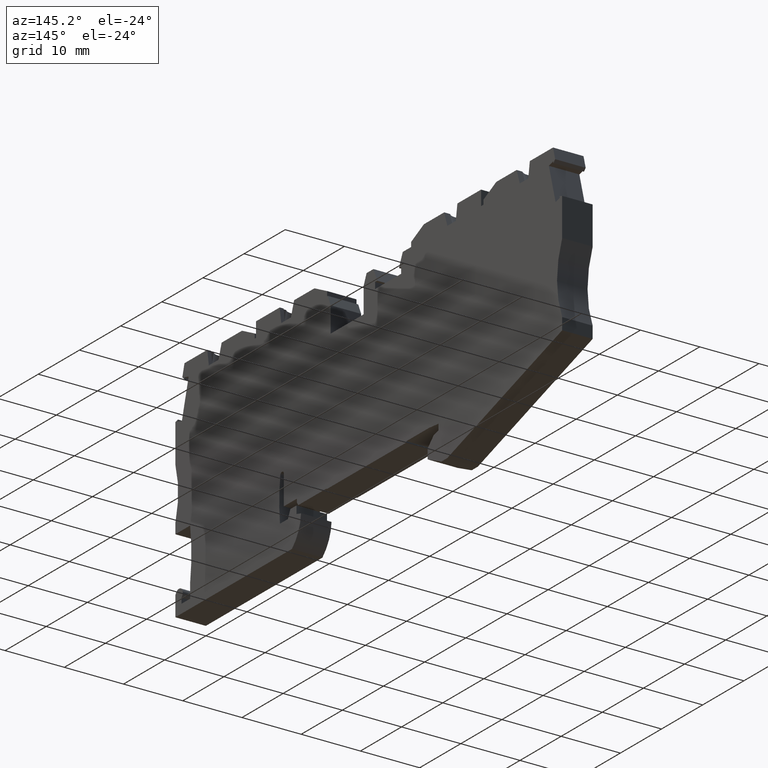
[diagram: clean part render]
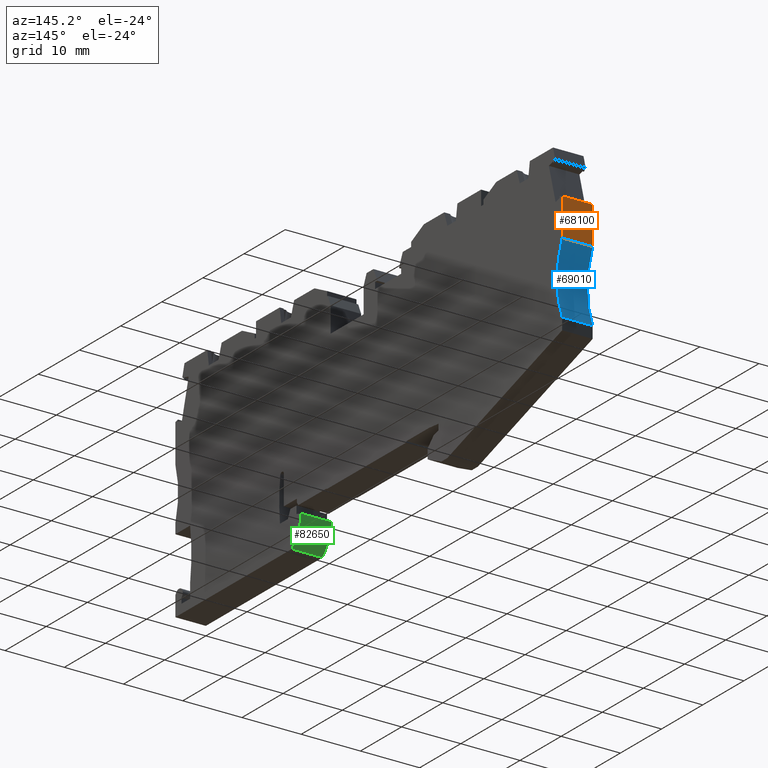
[diagram: same view with three faces highlighted in distinct colors, each labeled with its STEP entity id]
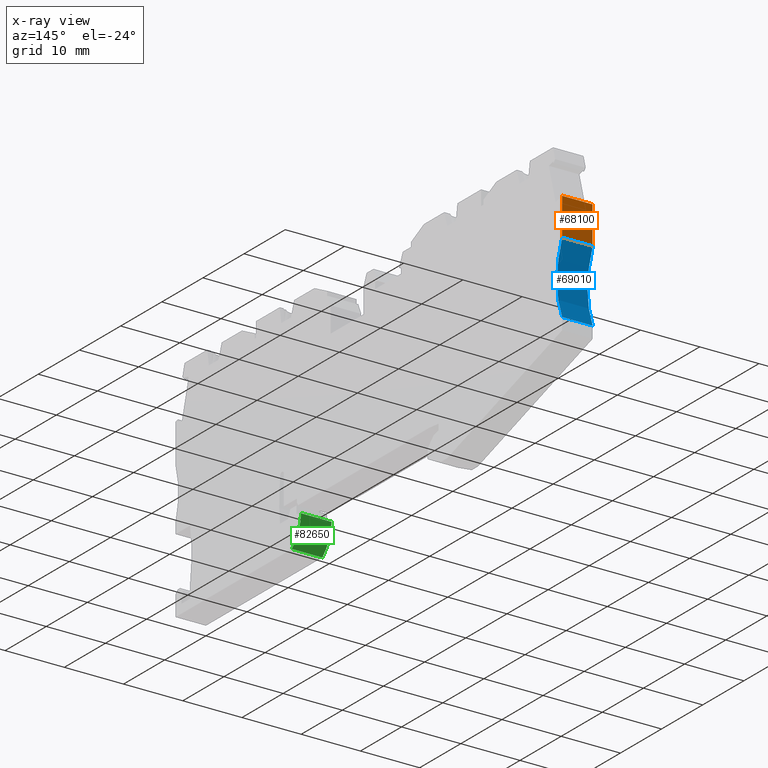
[diagram: x-ray of the same camera — body ghosted, the three highlighted faces saturated]
A machine part, auxiliary view with three faces highlighted in distinct colors.
The next image is the same camera in x-ray (body ghosted, the three faces saturated) — at least one of them is partly hidden behind the body in this view.
Their STEP definitions:

[orange] entity #68100 — the highlighted planar face has unit normal (0, -1, 0).
#7180=CARTESIAN_POINT('',(79.9711959708159,33.4272799277345,
5.05427942272532E-11));
#7190=VERTEX_POINT('',#7180);
#7220=CARTESIAN_POINT('',(83.8121891997316,2.1449004439308,
-6.899372213773E-11));
#7230=DIRECTION('',(-0.12186934340511,0.992546151641328,
-1.25369758141076E-16));
#7240=VECTOR('',#7230,1.);
#7250=LINE('',#7220,#7240);
#7260=CARTESIAN_POINT('',(80.7511501013406,27.0750632908097,
4.4169105825209E-11));
#7270=VERTEX_POINT('',#7260);
#7280=EDGE_CURVE('',#7270,#7190,#7250,.T.);
#8070=CARTESIAN_POINT('',(80.7511501013408,27.0750632908097,
-5.15000000005742));
#8080=VERTEX_POINT('',#8070);
#8110=CARTESIAN_POINT('',(83.8121891997318,2.14490044393082,
-5.150000000069));
#8120=DIRECTION('',(-0.12186934340511,0.992546151641328,
-1.25369758141076E-16));
#8130=VECTOR('',#8120,1.);
#8140=LINE('',#8110,#8130);
#8150=CARTESIAN_POINT('',(79.971195970816,33.4272799277345,
-5.15000000005197));
#8160=VERTEX_POINT('',#8150);
#8170=EDGE_CURVE('',#8080,#8160,#8140,.T.);
#67780=CARTESIAN_POINT('',(79.971195970816,33.4272799277345,
-6.89788789474153E-11));
#67790=DIRECTION('',(-2.48736047506293E-14,-2.91886266429657E-15,1.));
#67800=VECTOR('',#67790,1.);
#67810=LINE('',#67780,#67800);
#67820=EDGE_CURVE('',#8160,#7190,#67810,.T.);
#67940=CARTESIAN_POINT('',(80.2260416755006,31.3517282231009,
1.84518407456152E-12));
#67950=DIRECTION('',(-0.992546151641327,-0.12186934340511,
-2.49421363948349E-14));
#67960=DIRECTION('',(-0.12186934340511,0.992546151641327,
-3.94349325050935E-17));
#67970=AXIS2_PLACEMENT_3D('',#67940,#67950,#67960);
#67980=PLANE('',#67970);
#67990=ORIENTED_EDGE('',*,*,#67820,.T.);
#68000=ORIENTED_EDGE('',*,*,#8170,.T.);
#68010=CARTESIAN_POINT('',(80.7511501013407,27.0750632908098,
1.84757443713574E-12));
#68020=DIRECTION('',(-2.47610274017394E-14,-3.00054079505067E-15,1.));
#68030=VECTOR('',#68020,1.);
#68040=LINE('',#68010,#68030);
#68050=EDGE_CURVE('',#8080,#7270,#68040,.T.);
#68060=ORIENTED_EDGE('',*,*,#68050,.F.);
#68070=ORIENTED_EDGE('',*,*,#7280,.F.);
#68080=EDGE_LOOP('',(#68070,#68060,#68000,#67990));
#68090=FACE_OUTER_BOUND('',#68080,.T.);
#68100=ADVANCED_FACE('',(#68090),#67980,.F.);

[blue] entity #69010 — the highlighted cylindrical surface (partial cylindrical patch) has radius 15 mm, axis along (1, 0, -0).
#7260=CARTESIAN_POINT('',(80.7511501013406,27.0750632908097,
4.4169105825209E-11));
#7270=VERTEX_POINT('',#7260);
#7300=CARTESIAN_POINT('',(95.1276197746271,22.7952128573161,
4.45122401189058E-11));
#7310=DIRECTION('',(-2.47610274017394E-14,-3.00054079505067E-15,1.));
#7320=DIRECTION('',(0.992546151641327,0.12186934340511,
2.49421363947495E-14));
#7330=AXIS2_PLACEMENT_3D('',#7300,#7310,#7320);
#7340=CIRCLE('',#7330,15.);
#7350=CARTESIAN_POINT('',(82.2135822231572,15.1645094743228,
4.41695790444323E-11));
#7360=VERTEX_POINT('',#7350);
#7370=EDGE_CURVE('',#7270,#7360,#7340,.T.);
#7980=CARTESIAN_POINT('',(82.2135822231573,15.1645094743228,
-5.15000000005742));
#7990=VERTEX_POINT('',#7980);
#8020=CARTESIAN_POINT('',(95.1276197746272,22.7952128573161,
-5.15000000005708));
#8030=DIRECTION('',(-2.47610274017394E-14,-3.00054079505067E-15,1.));
#8040=DIRECTION('',(0.992546151641327,0.12186934340511,
2.49421363947495E-14));
#8050=AXIS2_PLACEMENT_3D('',#8020,#8030,#8040);
#8060=CIRCLE('',#8050,15.);
#8070=CARTESIAN_POINT('',(80.7511501013408,27.0750632908097,
-5.15000000005742));
#8080=VERTEX_POINT('',#8070);
#8090=EDGE_CURVE('',#8080,#7990,#8060,.T.);
#68010=CARTESIAN_POINT('',(80.7511501013407,27.0750632908098,
1.84757443713574E-12));
#68020=DIRECTION('',(-2.47610274017394E-14,-3.00054079505067E-15,1.));
#68030=VECTOR('',#68020,1.);
#68040=LINE('',#68010,#68030);
#68050=EDGE_CURVE('',#8080,#7270,#68040,.T.);
#68310=CARTESIAN_POINT('',(82.2135822231572,15.1645094743228,
1.84804765635908E-12));
#68320=DIRECTION('',(-2.47610274017394E-14,-3.00054079505067E-15,1.));
#68330=VECTOR('',#68320,1.);
#68340=LINE('',#68310,#68330);
#68350=EDGE_CURVE('',#7990,#7360,#68340,.T.);
#68900=CARTESIAN_POINT('',(95.1276197746271,22.7952128573161,
2.19070873083261E-12));
#68910=DIRECTION('',(-2.47610274017394E-14,-3.00054079505067E-15,1.));
#68920=DIRECTION('',(0.992546151641327,0.12186934340511,
2.49421363947495E-14));
#68930=AXIS2_PLACEMENT_3D('',#68900,#68910,#68920);
#68940=CYLINDRICAL_SURFACE('',#68930,15.);
#68950=ORIENTED_EDGE('',*,*,#68350,.F.);
#68960=ORIENTED_EDGE('',*,*,#7370,.T.);
#68970=ORIENTED_EDGE('',*,*,#68050,.T.);
#68980=ORIENTED_EDGE('',*,*,#8090,.F.);
#68990=EDGE_LOOP('',(#68980,#68970,#68960,#68950));
#69000=FACE_OUTER_BOUND('',#68990,.T.);
#69010=ADVANCED_FACE('',(#69000),#68940,.F.);

[green] entity #82650 — the highlighted cylindrical surface (partial cylindrical patch) has radius 6.6 mm, axis along (1, 0, -0).
#2740=CARTESIAN_POINT('',(20.040226033671,0.886311745838672,
8.29409827600205E-11));
#2750=VERTEX_POINT('',#2740);
#2780=CARTESIAN_POINT('',(13.4567200165408,0.419997986218399,
8.63376669921403E-11));
#2790=DIRECTION('',(5.11484905320667E-13,6.28767212301405E-14,1.));
#2800=DIRECTION('',(1.,2.08166817118832E-16,-5.11484905320753E-13));
#2810=AXIS2_PLACEMENT_3D('',#2780,#2790,#2800);
#2820=CIRCLE('',#2810,6.6);
#2830=CARTESIAN_POINT('',(18.3981893210479,-3.95514556715378,
8.40852747143263E-11));
#2840=VERTEX_POINT('',#2830);
#2850=EDGE_CURVE('',#2840,#2750,#2820,.T.);
#12340=CARTESIAN_POINT('',(18.3981893210453,-3.95514556715409,
-5.15000000007854));
#12350=VERTEX_POINT('',#12340);
#12380=CARTESIAN_POINT('',(13.4567200165382,0.419997986218075,
-5.15000000007629));
#12390=DIRECTION('',(5.11484905320667E-13,6.28767212301405E-14,1.));
#12400=DIRECTION('',(1.,2.08166817118832E-16,-5.11484905320753E-13));
#12410=AXIS2_PLACEMENT_3D('',#12380,#12390,#12400);
#12420=CIRCLE('',#12410,6.6);
#12430=CARTESIAN_POINT('',(20.0402260336683,0.886311745838163,
-5.15000000007969));
#12440=VERTEX_POINT('',#12430);
#12450=EDGE_CURVE('',#12350,#12440,#12420,.T.);
#81300=CARTESIAN_POINT('',(20.0402260336683,0.886311745838348,
-5.15000000005266));
#81310=DIRECTION('',(5.11484905320667E-13,6.28767212301405E-14,1.));
#81320=VECTOR('',#81310,1.);
#81330=LINE('',#81300,#81320);
#81340=EDGE_CURVE('',#12440,#2750,#81330,.T.);
#82490=CARTESIAN_POINT('',(13.4567200165382,0.419997986218075,
-5.15000000004926));
#82500=DIRECTION('',(5.11484905320667E-13,6.28767212301405E-14,1.));
#82510=DIRECTION('',(1.,2.08166817118832E-16,-5.11484905320753E-13));
#82520=AXIS2_PLACEMENT_3D('',#82490,#82500,#82510);
#82530=CYLINDRICAL_SURFACE('',#82520,6.6);
#82540=CARTESIAN_POINT('',(18.3981893210453,-3.95514556715409,
-5.15000000005151));
#82550=DIRECTION('',(-5.11484905320667E-13,-6.28767212301405E-14,-1.));
#82560=VECTOR('',#82550,1.);
#82570=LINE('',#82540,#82560);
#82580=EDGE_CURVE('',#2840,#12350,#82570,.T.);
#82590=ORIENTED_EDGE('',*,*,#82580,.T.);
#82600=ORIENTED_EDGE('',*,*,#2850,.F.);
#82610=ORIENTED_EDGE('',*,*,#81340,.T.);
#82620=ORIENTED_EDGE('',*,*,#12450,.T.);
#82630=EDGE_LOOP('',(#82620,#82610,#82600,#82590));
#82640=FACE_OUTER_BOUND('',#82630,.T.);
#82650=ADVANCED_FACE('',(#82640),#82530,.T.);